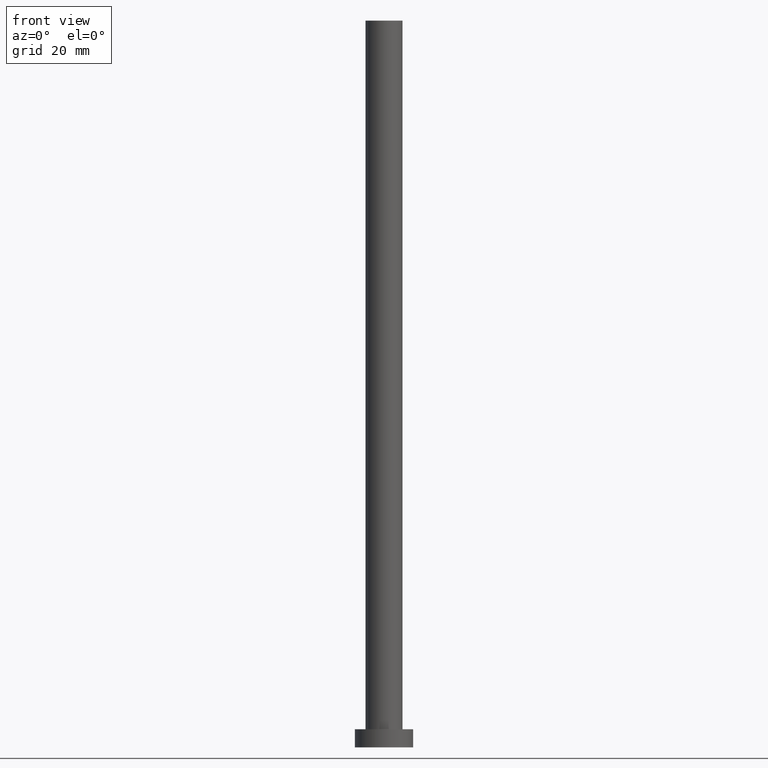
[diagram: clean part render]
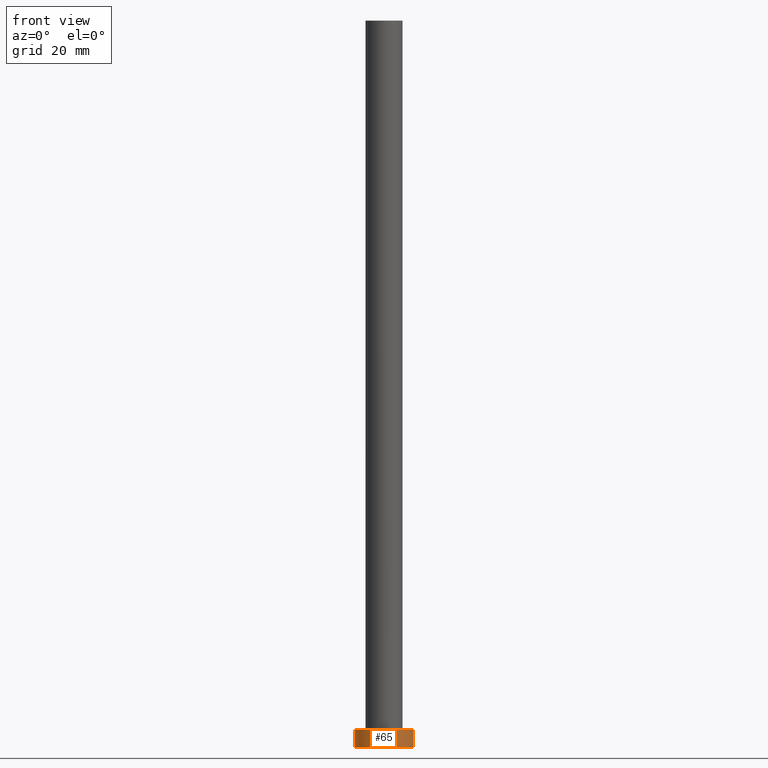
[diagram: same view with one face highlighted and labeled with its STEP entity id]
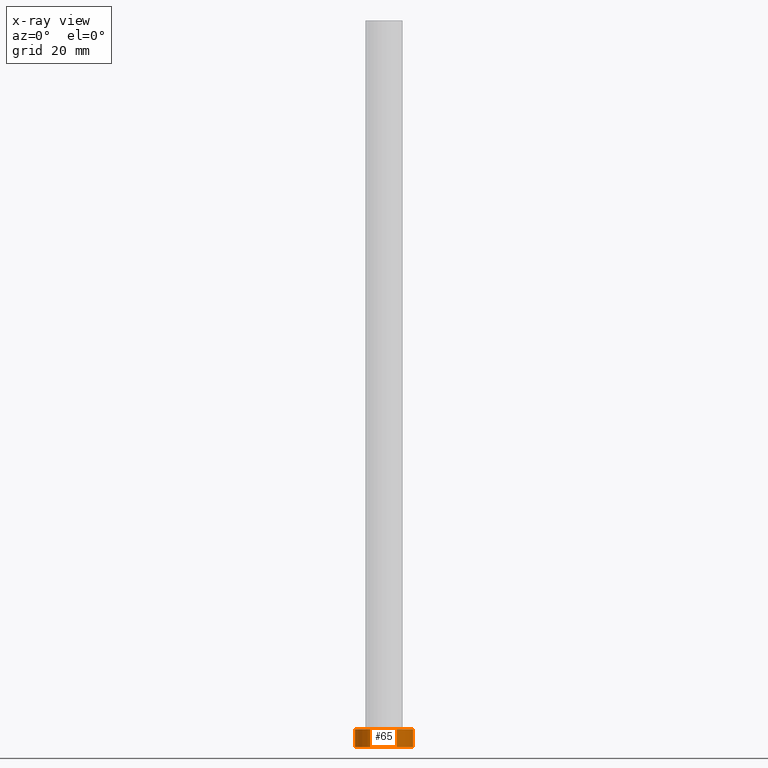
[diagram: x-ray of the same camera — body ghosted, the highlighted face saturated]
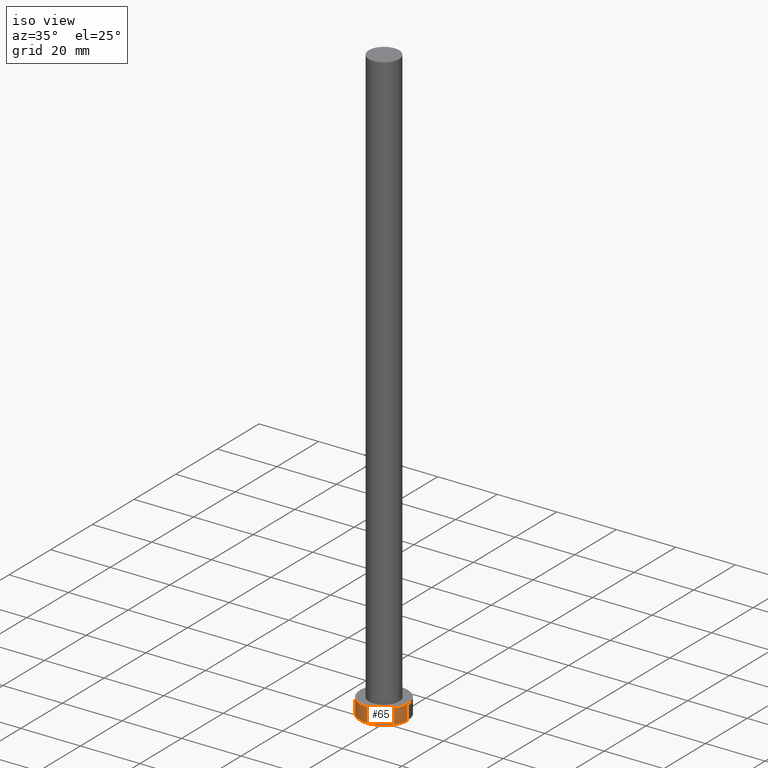
[diagram: same view with one face highlighted and labeled with its STEP entity id]
A machine part, front view. The second image highlights one B-rep face of the part: STEP entity #65.
The next image is the same camera in x-ray: the body ghosted, the highlighted face saturated — about 0% of this face is hidden behind the body in this view.
A second angle (iso view) of the same face is appended — the face is thin or edge-on in the first view.
In plain terms, the highlighted cylindrical surface (edge-blend (fillet) strip) has radius 8 mm, axis along (-0, -0, -1).
Its self-contained STEP definition (entity closure, byte-faithful):
#3 = FACE_OUTER_BOUND ( 'NONE', #116, .T. ) ;
#8 = ORIENTED_EDGE ( 'NONE', *, *, #11, .T. ) ;
#11 = EDGE_CURVE ( 'NONE', #77, #64, #148, .T. ) ;
#13 = CARTESIAN_POINT ( 'NONE',  ( 0.000000000000000000, 0.000000000000000000, 0.000000000000000000 ) ) ;
#32 = LINE ( 'NONE', #106, #78 ) ;
#35 = AXIS2_PLACEMENT_3D ( 'NONE', #13, #166, #227 ) ;
#42 = CARTESIAN_POINT ( 'NONE',  ( 0.000000000000000000, 0.000000000000000000, 5.000000000000000000 ) ) ;
#56 = DIRECTION ( 'NONE',  ( 1.000000000000000000, 0.000000000000000000, 0.000000000000000000 ) ) ;
#58 = CIRCLE ( 'NONE', #215, 8.000000000000000000 ) ;
#62 = DIRECTION ( 'NONE',  ( -1.000000000000000000, 0.000000000000000000, 0.000000000000000000 ) ) ;
#64 = VERTEX_POINT ( 'NONE', #128 ) ;
#65 = ADVANCED_FACE ( 'NONE', ( #3 ), #82, .T. ) ;
#69 = DIRECTION ( 'NONE',  ( -0.000000000000000000, -0.000000000000000000, -1.000000000000000000 ) ) ;
#72 = DIRECTION ( 'NONE',  ( 0.000000000000000000, 0.000000000000000000, 1.000000000000000000 ) ) ;
#76 = EDGE_CURVE ( 'NONE', #201, #77, #32, .T. ) ;
#77 = VERTEX_POINT ( 'NONE', #226 ) ;
#78 = VECTOR ( 'NONE', #165, 1000.000000000000000 ) ;
#82 = CYLINDRICAL_SURFACE ( 'NONE', #173, 8.000000000000000000 ) ;
#106 = CARTESIAN_POINT ( 'NONE',  ( -8.000000000000000000, 0.000000000000000000, 5.000000000000000000 ) ) ;
#116 = EDGE_LOOP ( 'NONE', ( #196, #182, #236, #8 ) ) ;
#122 = VECTOR ( 'NONE', #69, 1000.000000000000000 ) ;
#128 = CARTESIAN_POINT ( 'NONE',  ( 8.000000000000000000, 9.797174393178825657E-16, 0.000000000000000000 ) ) ;
#148 = CIRCLE ( 'NONE', #35, 8.000000000000000000 ) ;
#165 = DIRECTION ( 'NONE',  ( -0.000000000000000000, -0.000000000000000000, -1.000000000000000000 ) ) ;
#166 = DIRECTION ( 'NONE',  ( 0.000000000000000000, 0.000000000000000000, 1.000000000000000000 ) ) ;
#173 = AXIS2_PLACEMENT_3D ( 'NONE', #185, #247, #62 ) ;
#182 = ORIENTED_EDGE ( 'NONE', *, *, #216, .F. ) ;
#185 = CARTESIAN_POINT ( 'NONE',  ( 0.000000000000000000, 0.000000000000000000, 5.000000000000000000 ) ) ;
#191 = EDGE_CURVE ( 'NONE', #203, #64, #235, .T. ) ;
#195 = CARTESIAN_POINT ( 'NONE',  ( 8.000000000000000000, 9.797174393178825657E-16, 5.000000000000000000 ) ) ;
#196 = ORIENTED_EDGE ( 'NONE', *, *, #191, .F. ) ;
#201 = VERTEX_POINT ( 'NONE', #220 ) ;
#203 = VERTEX_POINT ( 'NONE', #195 ) ;
#215 = AXIS2_PLACEMENT_3D ( 'NONE', #42, #72, #56 ) ;
#216 = EDGE_CURVE ( 'NONE', #201, #203, #58, .T. ) ;
#219 = CARTESIAN_POINT ( 'NONE',  ( 8.000000000000000000, 9.797174393178825657E-16, 5.000000000000000000 ) ) ;
#220 = CARTESIAN_POINT ( 'NONE',  ( -8.000000000000000000, 0.000000000000000000, 5.000000000000000000 ) ) ;
#226 = CARTESIAN_POINT ( 'NONE',  ( -8.000000000000000000, 0.000000000000000000, 0.000000000000000000 ) ) ;
#227 = DIRECTION ( 'NONE',  ( 1.000000000000000000, 0.000000000000000000, 0.000000000000000000 ) ) ;
#235 = LINE ( 'NONE', #219, #122 ) ;
#236 = ORIENTED_EDGE ( 'NONE', *, *, #76, .T. ) ;
#247 = DIRECTION ( 'NONE',  ( -0.000000000000000000, -0.000000000000000000, -1.000000000000000000 ) ) ;